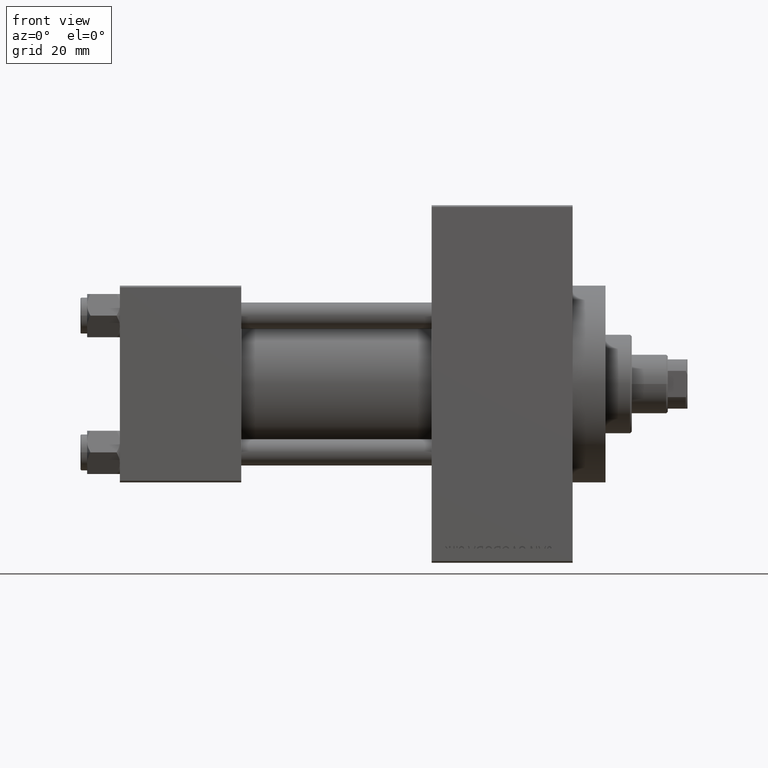
[diagram: clean part render]
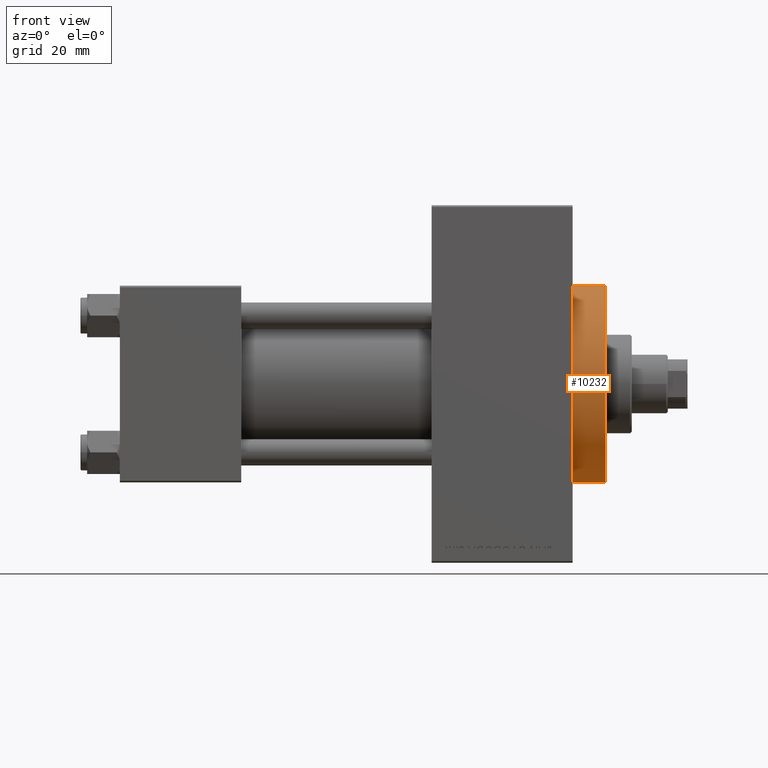
[diagram: same view with one face highlighted and labeled with its STEP entity id]
A machine part, front view. The second image highlights one B-rep face of the part: STEP entity #10232.
In plain terms, the highlighted cylindrical surface (partial cylindrical patch) has radius 30 mm, axis along (-1, -0, -0).
Its self-contained STEP definition (entity closure, byte-faithful):
#107 = DIRECTION ( 'NONE',  ( 1.000000000000000000, 0.000000000000000000, 0.000000000000000000 ) ) ;
#4049 = EDGE_CURVE ( 'NONE', #14121, #18310, #36629, .T. ) ;
#4202 = CARTESIAN_POINT ( 'NONE',  ( 138.0000000000000000, -30.00000000000000000, 0.000000000000000000 ) ) ;
#6020 = ORIENTED_EDGE ( 'NONE', *, *, #41984, .T. ) ;
#6843 = CARTESIAN_POINT ( 'NONE',  ( 148.0000000000000284, 0.000000000000000000, 0.000000000000000000 ) ) ;
#8921 = ORIENTED_EDGE ( 'NONE', *, *, #4049, .F. ) ;
#9232 = ORIENTED_EDGE ( 'NONE', *, *, #28635, .F. ) ;
#10232 = ADVANCED_FACE ( 'NONE', ( #47201 ), #11133, .T. ) ;
#11133 = CYLINDRICAL_SURFACE ( 'NONE', #43295, 30.00000000000000000 ) ;
#12036 = EDGE_CURVE ( 'NONE', #40576, #18310, #16616, .T. ) ;
#14121 = VERTEX_POINT ( 'NONE', #26330 ) ;
#14170 = DIRECTION ( 'NONE',  ( -1.000000000000000000, -0.000000000000000000, -0.000000000000000000 ) ) ;
#14352 = CARTESIAN_POINT ( 'NONE',  ( 138.0000000000000000, 0.000000000000000000, 0.000000000000000000 ) ) ;
#14657 = DIRECTION ( 'NONE',  ( 0.000000000000000000, 0.000000000000000000, -1.000000000000000000 ) ) ;
#16616 = CIRCLE ( 'NONE', #33423, 30.00000000000000000 ) ;
#18310 = VERTEX_POINT ( 'NONE', #42857 ) ;
#18810 = EDGE_LOOP ( 'NONE', ( #8921, #9232, #6020, #26160, #24003 ) ) ;
#21666 = VERTEX_POINT ( 'NONE', #30153 ) ;
#24003 = ORIENTED_EDGE ( 'NONE', *, *, #12036, .T. ) ;
#26160 = ORIENTED_EDGE ( 'NONE', *, *, #36488, .T. ) ;
#26330 = CARTESIAN_POINT ( 'NONE',  ( 148.0000000000000284, 3.673940397442059178E-15, -30.00000000000000000 ) ) ;
#26558 = AXIS2_PLACEMENT_3D ( 'NONE', #43146, #35988, #35046 ) ;
#26714 = DIRECTION ( 'NONE',  ( -1.000000000000000000, -0.000000000000000000, -0.000000000000000000 ) ) ;
#28605 = VERTEX_POINT ( 'NONE', #32824 ) ;
#28635 = EDGE_CURVE ( 'NONE', #28605, #14121, #38511, .T. ) ;
#28727 = VECTOR ( 'NONE', #14170, 1000.000000000000000 ) ;
#28944 = DIRECTION ( 'NONE',  ( 1.000000000000000000, 0.000000000000000000, 0.000000000000000000 ) ) ;
#30153 = CARTESIAN_POINT ( 'NONE',  ( 138.0000000000000000, 0.000000000000000000, 30.00000000000000000 ) ) ;
#31663 = AXIS2_PLACEMENT_3D ( 'NONE', #36871, #107, #14657 ) ;
#32824 = CARTESIAN_POINT ( 'NONE',  ( 148.0000000000000284, 0.000000000000000000, 30.00000000000000000 ) ) ;
#33423 = AXIS2_PLACEMENT_3D ( 'NONE', #14352, #28944, #43492 ) ;
#35046 = DIRECTION ( 'NONE',  ( 0.000000000000000000, 0.000000000000000000, -1.000000000000000000 ) ) ;
#35726 = DIRECTION ( 'NONE',  ( -1.000000000000000000, -0.000000000000000000, -0.000000000000000000 ) ) ;
#35911 = CARTESIAN_POINT ( 'NONE',  ( 148.0000000000000284, 3.673940397442059178E-15, -30.00000000000000000 ) ) ;
#35966 = DIRECTION ( 'NONE',  ( 0.000000000000000000, 0.000000000000000000, 1.000000000000000000 ) ) ;
#35988 = DIRECTION ( 'NONE',  ( 1.000000000000000000, 0.000000000000000000, 0.000000000000000000 ) ) ;
#36488 = EDGE_CURVE ( 'NONE', #21666, #40576, #37219, .T. ) ;
#36585 = CARTESIAN_POINT ( 'NONE',  ( 148.0000000000000284, 0.000000000000000000, 30.00000000000000000 ) ) ;
#36629 = LINE ( 'NONE', #35911, #28727 ) ;
#36871 = CARTESIAN_POINT ( 'NONE',  ( 148.0000000000000284, 0.000000000000000000, 0.000000000000000000 ) ) ;
#37219 = CIRCLE ( 'NONE', #26558, 30.00000000000000000 ) ;
#38511 = CIRCLE ( 'NONE', #31663, 30.00000000000000000 ) ;
#40361 = VECTOR ( 'NONE', #26714, 1000.000000000000000 ) ;
#40403 = LINE ( 'NONE', #36585, #40361 ) ;
#40576 = VERTEX_POINT ( 'NONE', #4202 ) ;
#41984 = EDGE_CURVE ( 'NONE', #28605, #21666, #40403, .T. ) ;
#42857 = CARTESIAN_POINT ( 'NONE',  ( 138.0000000000000000, 3.673940397442059178E-15, -30.00000000000000000 ) ) ;
#43146 = CARTESIAN_POINT ( 'NONE',  ( 138.0000000000000000, 0.000000000000000000, 0.000000000000000000 ) ) ;
#43295 = AXIS2_PLACEMENT_3D ( 'NONE', #6843, #35726, #35966 ) ;
#43492 = DIRECTION ( 'NONE',  ( 0.000000000000000000, 0.000000000000000000, -1.000000000000000000 ) ) ;
#47201 = FACE_OUTER_BOUND ( 'NONE', #18810, .T. ) ;